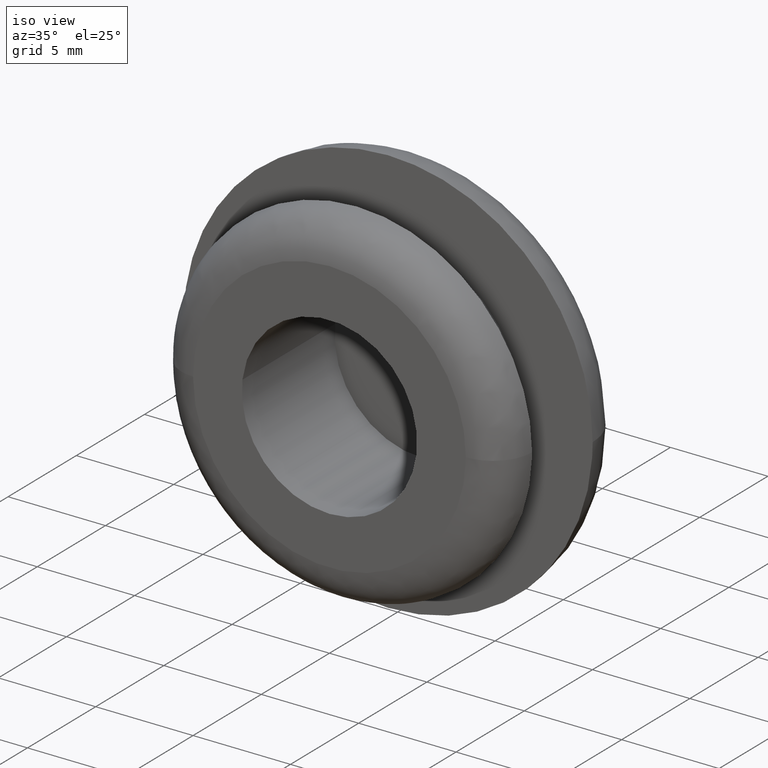
[diagram: clean part render]
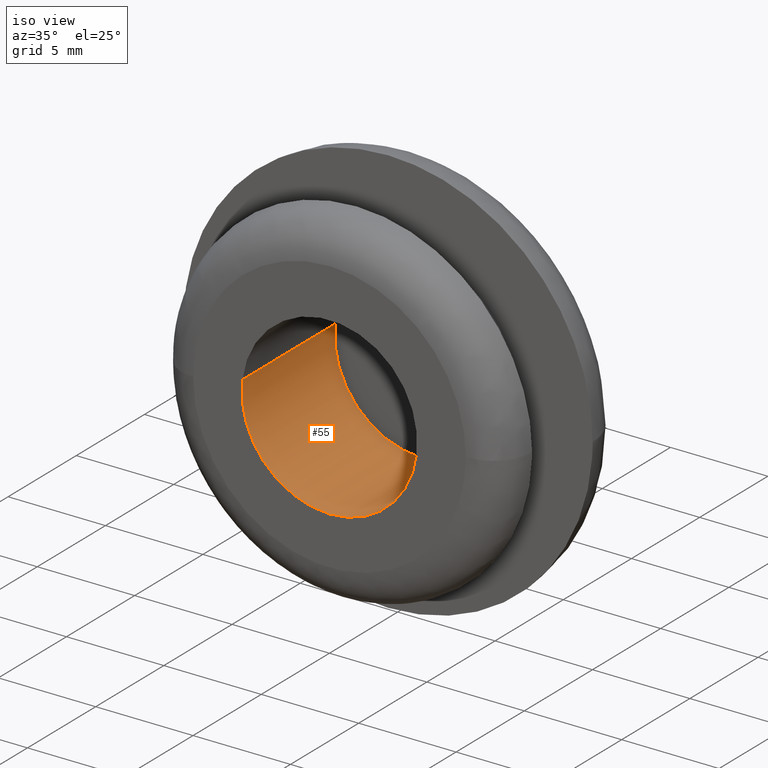
[diagram: same view with one face highlighted and labeled with its STEP entity id]
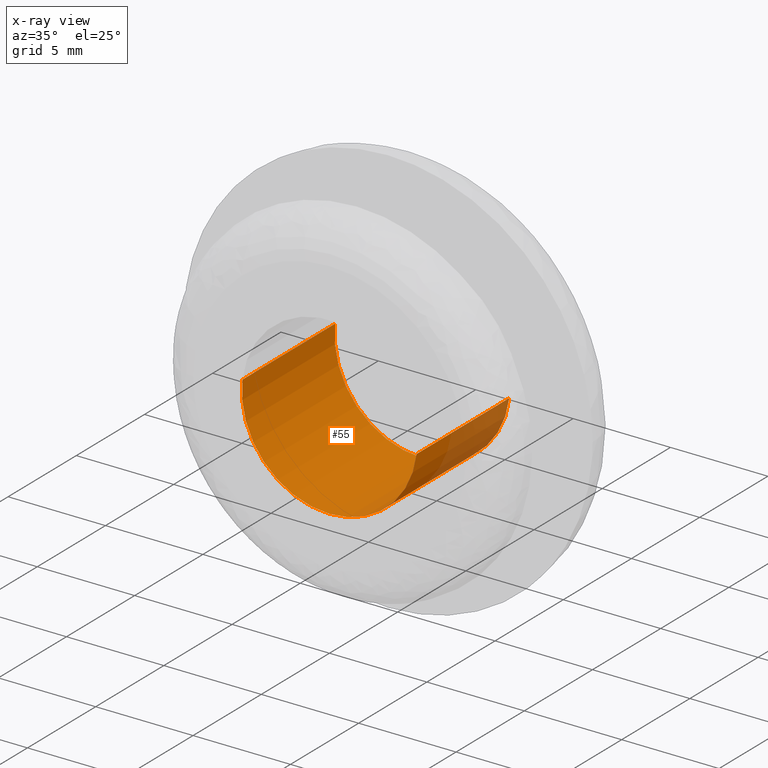
[diagram: x-ray of the same camera — body ghosted, the highlighted face saturated]
A machine part, iso view. The second image highlights one B-rep face of the part: STEP entity #55.
The next image is the same camera in x-ray: the body ghosted, the highlighted face saturated — about 9% of this face is hidden behind the body in this view.
In plain terms, the highlighted cylindrical surface (partial cylindrical patch) has radius 4.5 mm, axis along (-0, 1, -0).
Its self-contained STEP definition (entity closure, byte-faithful):
#55=ADVANCED_FACE('',(#215),#214,.F.);
#214=CYLINDRICAL_SURFACE('',#472,4.50000000000E+000);
#215=FACE_OUTER_BOUND('',#473,.T.);
#469=CARTESIAN_POINT('',(-6.56881204552E-013,6.80000000000E+000,-5.38838303038E-013));
#470=DIRECTION('',(-3.82268435810E-016,1.00000000000E+000,-7.07733268930E-016));
#471=DIRECTION('',(-9.93009531033E-001,-2.96059473233E-016,1.18034195376E-001));
#472=AXIS2_PLACEMENT_3D('',#469,#470,#471);
#473=EDGE_LOOP('',(#596,#597,#598,#599,#600,#601));
#596=ORIENTED_EDGE('',*,*,#629,.F.);
#597=ORIENTED_EDGE('',*,*,#631,.F.);
#598=ORIENTED_EDGE('',*,*,#686,.F.);
#599=ORIENTED_EDGE('',*,*,#635,.T.);
#600=ORIENTED_EDGE('',*,*,#637,.T.);
#601=ORIENTED_EDGE('',*,*,#687,.T.);
#629=EDGE_CURVE('',#713,#714,#715,.T.);
#631=EDGE_CURVE('',#721,#713,#728,.T.);
#635=EDGE_CURVE('',#755,#756,#757,.T.);
#637=EDGE_CURVE('',#756,#763,#770,.T.);
#686=EDGE_CURVE('',#755,#721,#1104,.T.);
#687=EDGE_CURVE('',#763,#714,#1110,.T.);
#713=VERTEX_POINT('',#1155);
#714=VERTEX_POINT('',#1156);
#715=CIRCLE('',#1160,4.49999999999E+000);
#721=VERTEX_POINT('',#1161);
#728=CIRCLE('',#1169,4.49999999999E+000);
#755=VERTEX_POINT('',#1185);
#756=VERTEX_POINT('',#1186);
#757=CIRCLE('',#1190,4.50000000000E+000);
#763=VERTEX_POINT('',#1191);
#770=CIRCLE('',#1199,4.50000000000E+000);
#1104=(BOUNDED_CURVE() B_SPLINE_CURVE(1,(#1432,#1433),.UNSPECIFIED.,.F.,.F.) B_SPLINE_CURVE_WITH_KNOTS((2,2),(8.33333320912E-002,9.16666664070E-001),.UNSPECIFIED.) CURVE() GEOMETRIC_REPRESENTATION_ITEM() RATIONAL_B_SPLINE_CURVE((1.00000000000E+000,1.00000000000E+000)) REPRESENTATION_ITEM('') );
#1110=(BOUNDED_CURVE() B_SPLINE_CURVE(1,(#1434,#1435),.UNSPECIFIED.,.F.,.F.) B_SPLINE_CURVE_WITH_KNOTS((2,2),(8.33333333333E-002,9.16666666667E-001),.UNSPECIFIED.) CURVE() GEOMETRIC_REPRESENTATION_ITEM() RATIONAL_B_SPLINE_CURVE((7.50000000000E-001,7.50000000000E-001)) REPRESENTATION_ITEM('') );
#1155=CARTESIAN_POINT('',(-5.51072861813E-016,6.80000000000E+000,-4.49999999999E+000));
#1156=CARTESIAN_POINT('',(4.46845102012E+000,6.80000000000E+000,-5.31926198587E-001));
#1157=CARTESIAN_POINT('',(-9.51239087499E-013,6.80000000000E+000,6.13376016645E-012));
#1158=DIRECTION('',(-1.39563774105E-016,-1.00000000000E+000,-3.94745964312E-016));
#1159=DIRECTION('',(2.11386463888E-013,3.94745964312E-016,-1.00000000000E+000));
#1160=AXIS2_PLACEMENT_3D('',#1157,#1158,#1159);
#1161=CARTESIAN_POINT('',(-4.46854308388E+000,6.80000000000E+000,5.31152245066E-001));
#1166=CARTESIAN_POINT('',(-9.51239087499E-013,6.80000000000E+000,6.13376016645E-012));
#1167=DIRECTION('',(-1.39563774105E-016,-1.00000000000E+000,-3.94745964312E-016));
#1168=DIRECTION('',(2.11386463888E-013,3.94745964312E-016,-1.00000000000E+000));
#1169=AXIS2_PLACEMENT_3D('',#1166,#1167,#1168);
#1185=CARTESIAN_POINT('',(-4.46854308389E+000,9.93416920442E-016,5.31152245067E-001));
#1186=CARTESIAN_POINT('',(-1.11022302463E-015,1.57461901973E-014,-4.50000000000E+000));
#1187=CARTESIAN_POINT('',(1.77635683940E-014,5.38503843972E-016,4.21884749358E-014));
#1188=DIRECTION('',(-5.03505176963E-016,-1.00000000000E+000,-3.37948585630E-015));
#1189=DIRECTION('',(-3.85802501057E-015,3.37948585630E-015,-1.00000000000E+000));
#1190=AXIS2_PLACEMENT_3D('',#1187,#1188,#1189);
#1191=CARTESIAN_POINT('',(4.46845102012E+000,8.62526870618E-017,-5.31926198588E-001));
#1196=CARTESIAN_POINT('',(1.77635683940E-014,5.38503843972E-016,4.21884749358E-014));
#1197=DIRECTION('',(-5.03505176963E-016,-1.00000000000E+000,-3.37948585630E-015));
#1198=DIRECTION('',(-3.85802501057E-015,3.37948585630E-015,-1.00000000000E+000));
#1199=AXIS2_PLACEMENT_3D('',#1196,#1197,#1198);
#1432=CARTESIAN_POINT('',(-4.46854288965E+000,-1.01355476234E-008,5.31153879190E-001));
#1433=CARTESIAN_POINT('',(-4.46854288965E+000,6.79999997882E+000,5.31153879190E-001));
#1434=CARTESIAN_POINT('',(4.46854288965E+000,1.70234197109E-015,-5.31153879191E-001));
#1435=CARTESIAN_POINT('',(4.46854288965E+000,6.80000000000E+000,-5.31153879191E-001));